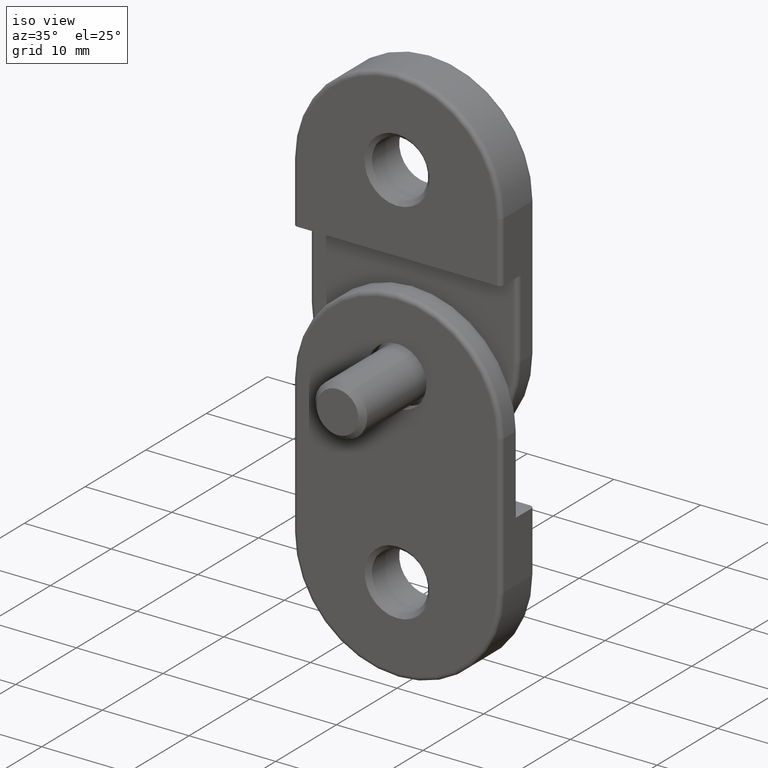
[diagram: clean part render]
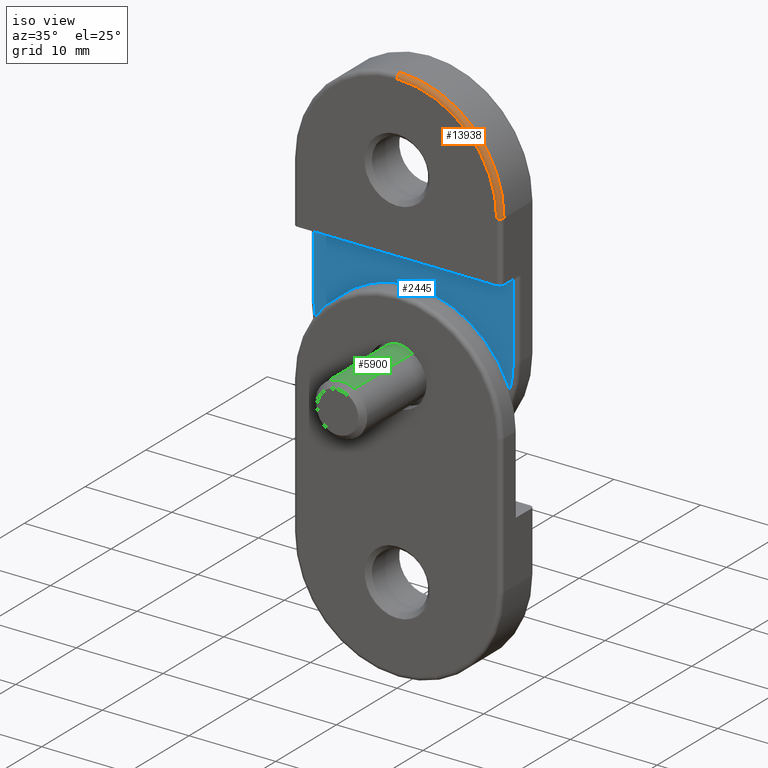
[diagram: same view with three faces highlighted in distinct colors, each labeled with its STEP entity id]
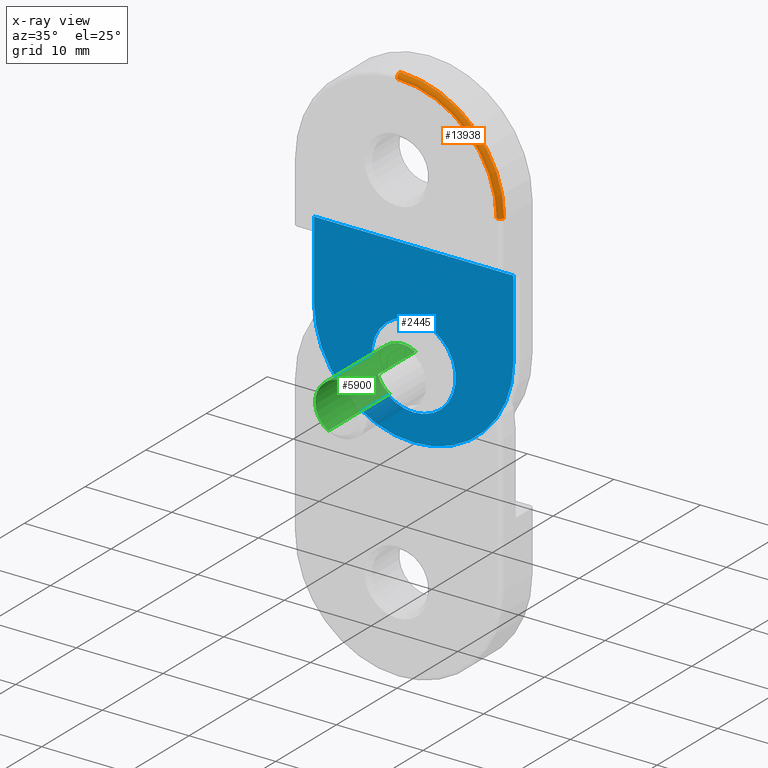
[diagram: x-ray of the same camera — body ghosted, the three highlighted faces saturated]
A machine part, iso view with three faces highlighted in distinct colors.
The next image is the same camera in x-ray (body ghosted, the three faces saturated) — at least one of them is partly hidden behind the body in this view.
Their STEP definitions:

[orange] entity #13938 — the highlighted toroidal blend (fillet) surface has major radius 11.5 mm and minor (blend) radius 0.5 mm.
#2328 = DIRECTION ( 'NONE',  ( 0.000000000000000000, 0.000000000000000000, 1.000000000000000000 ) ) ;
#2820 = CARTESIAN_POINT ( 'NONE',  ( 12.00000000000000000, 0.5000000000000004441, 6.999999999999999112 ) ) ;
#2850 = DIRECTION ( 'NONE',  ( 1.000000000000000000, 0.000000000000000000, -0.000000000000000000 ) ) ;
#3104 = ORIENTED_EDGE ( 'NONE', *, *, #13108, .F. ) ;
#3277 = DIRECTION ( 'NONE',  ( 0.000000000000000000, 0.000000000000000000, 1.000000000000000000 ) ) ;
#3326 = EDGE_LOOP ( 'NONE', ( #14875, #3104, #9956, #8364 ) ) ;
#3927 = CARTESIAN_POINT ( 'NONE',  ( 0.000000000000000000, 0.5000000000000004441, 6.999999999999999112 ) ) ;
#4734 = VERTEX_POINT ( 'NONE', #11296 ) ;
#5972 = DIRECTION ( 'NONE',  ( -0.000000000000000000, -1.000000000000000000, -0.000000000000000000 ) ) ;
#6859 = CARTESIAN_POINT ( 'NONE',  ( 11.50000000000000000, 0.5000000000000004441, 6.999999999999999112 ) ) ;
#7715 = CARTESIAN_POINT ( 'NONE',  ( 11.50000000000000000, 0.000000000000000000, 6.999999999999999112 ) ) ;
#8060 = DIRECTION ( 'NONE',  ( -1.000000000000000000, 0.000000000000000000, 0.000000000000000000 ) ) ;
#8166 = CARTESIAN_POINT ( 'NONE',  ( 0.000000000000000000, 0.5000000000000004441, 6.999999999999999112 ) ) ;
#8364 = ORIENTED_EDGE ( 'NONE', *, *, #10849, .F. ) ;
#8715 = VERTEX_POINT ( 'NONE', #13855 ) ;
#8827 = DIRECTION ( 'NONE',  ( 0.000000000000000000, 1.000000000000000000, 0.000000000000000000 ) ) ;
#8892 = AXIS2_PLACEMENT_3D ( 'NONE', #10078, #2850, #11292 ) ;
#9001 = CIRCLE ( 'NONE', #14656, 0.5000000000000004441 ) ;
#9276 = CIRCLE ( 'NONE', #9801, 12.00000000000000000 ) ;
#9571 = VERTEX_POINT ( 'NONE', #2820 ) ;
#9744 = CARTESIAN_POINT ( 'NONE',  ( 0.000000000000000000, 0.000000000000000000, 6.999999999999999112 ) ) ;
#9801 = AXIS2_PLACEMENT_3D ( 'NONE', #3927, #8827, #9898 ) ;
#9898 = DIRECTION ( 'NONE',  ( 0.000000000000000000, 0.000000000000000000, 1.000000000000000000 ) ) ;
#9956 = ORIENTED_EDGE ( 'NONE', *, *, #13602, .F. ) ;
#10011 = AXIS2_PLACEMENT_3D ( 'NONE', #8166, #10613, #3277 ) ;
#10078 = CARTESIAN_POINT ( 'NONE',  ( 0.000000000000000000, 0.5000000000000000000, 18.50000000000000355 ) ) ;
#10613 = DIRECTION ( 'NONE',  ( 0.000000000000000000, 1.000000000000000000, 0.000000000000000000 ) ) ;
#10849 = EDGE_CURVE ( 'NONE', #8715, #9571, #9276, .T. ) ;
#11094 = VERTEX_POINT ( 'NONE', #7715 ) ;
#11292 = DIRECTION ( 'NONE',  ( 0.000000000000000000, 0.000000000000000000, -1.000000000000000000 ) ) ;
#11296 = CARTESIAN_POINT ( 'NONE',  ( 0.000000000000000000, 0.000000000000000000, 18.50000000000000355 ) ) ;
#11436 = AXIS2_PLACEMENT_3D ( 'NONE', #9744, #5972, #2328 ) ;
#13108 = EDGE_CURVE ( 'NONE', #11094, #4734, #14429, .T. ) ;
#13426 = CIRCLE ( 'NONE', #8892, 0.5000000000000004441 ) ;
#13602 = EDGE_CURVE ( 'NONE', #9571, #11094, #9001, .T. ) ;
#13855 = CARTESIAN_POINT ( 'NONE',  ( 0.000000000000000000, 0.5000000000000004441, 19.00000000000000355 ) ) ;
#13938 = ADVANCED_FACE ( 'NONE', ( #14294 ), #14672, .T. ) ;
#14294 = FACE_OUTER_BOUND ( 'NONE', #3326, .T. ) ;
#14429 = CIRCLE ( 'NONE', #11436, 11.50000000000000000 ) ;
#14656 = AXIS2_PLACEMENT_3D ( 'NONE', #6859, #15315, #8060 ) ;
#14672 = TOROIDAL_SURFACE ( 'NONE', #10011, 11.50000000000000000, 0.5000000000000000000 ) ;
#14842 = EDGE_CURVE ( 'NONE', #8715, #4734, #13426, .T. ) ;
#14875 = ORIENTED_EDGE ( 'NONE', *, *, #14842, .T. ) ;
#15315 = DIRECTION ( 'NONE',  ( 0.000000000000000000, 0.000000000000000000, -1.000000000000000000 ) ) ;

[blue] entity #2445 — the highlighted planar face has unit normal (0, 1, 0).
#171 = EDGE_CURVE ( 'NONE', #15077, #4366, #9114, .T. ) ;
#172 = FACE_OUTER_BOUND ( 'NONE', #548, .T. ) ;
#548 = EDGE_LOOP ( 'NONE', ( #11580, #13718, #7294, #2819, #6272 ) ) ;
#808 = EDGE_CURVE ( 'NONE', #14907, #1157, #12312, .T. ) ;
#918 = DIRECTION ( 'NONE',  ( -0.000000000000000000, 0.000000000000000000, -1.000000000000000000 ) ) ;
#921 = CARTESIAN_POINT ( 'NONE',  ( 11.50000000000000000, 2.750000000000000000, 0.000000000000000000 ) ) ;
#954 = AXIS2_PLACEMENT_3D ( 'NONE', #13791, #8741, #8574 ) ;
#1032 = DIRECTION ( 'NONE',  ( 0.000000000000000000, 0.000000000000000000, 1.000000000000000000 ) ) ;
#1157 = VERTEX_POINT ( 'NONE', #6341 ) ;
#1272 = FACE_BOUND ( 'NONE', #11463, .T. ) ;
#1821 = DIRECTION ( 'NONE',  ( -1.000000000000000000, 0.000000000000000000, 0.000000000000000000 ) ) ;
#1946 = LINE ( 'NONE', #14189, #12901 ) ;
#2363 = ORIENTED_EDGE ( 'NONE', *, *, #9874, .F. ) ;
#2445 = ADVANCED_FACE ( 'NONE', ( #1272, #172 ), #13098, .F. ) ;
#2819 = ORIENTED_EDGE ( 'NONE', *, *, #6876, .T. ) ;
#4031 = ORIENTED_EDGE ( 'NONE', *, *, #808, .F. ) ;
#4366 = VERTEX_POINT ( 'NONE', #10380 ) ;
#4557 = VERTEX_POINT ( 'NONE', #921 ) ;
#4699 = DIRECTION ( 'NONE',  ( 0.000000000000000000, -0.000000000000000000, 1.000000000000000000 ) ) ;
#4700 = CARTESIAN_POINT ( 'NONE',  ( -11.50000000000000000, 2.750000000000000000, -9.000000000000001776 ) ) ;
#4729 = CIRCLE ( 'NONE', #11158, 4.850000000000024514 ) ;
#5946 = AXIS2_PLACEMENT_3D ( 'NONE', #7944, #15574, #8310 ) ;
#6272 = ORIENTED_EDGE ( 'NONE', *, *, #7071, .T. ) ;
#6274 = VECTOR ( 'NONE', #10844, 1000.000000000000000 ) ;
#6341 = CARTESIAN_POINT ( 'NONE',  ( 0.000000000000000000, 2.749999999999998224, -7.649999999999969269 ) ) ;
#6876 = EDGE_CURVE ( 'NONE', #4366, #13826, #10056, .T. ) ;
#7053 = CARTESIAN_POINT ( 'NONE',  ( 0.000000000000000000, 2.749999999999998224, -12.49999999999999289 ) ) ;
#7055 = CARTESIAN_POINT ( 'NONE',  ( 12.00000000000000000, 2.750000000000000000, -21.00000000000000000 ) ) ;
#7071 = EDGE_CURVE ( 'NONE', #13826, #4557, #10037, .T. ) ;
#7134 = AXIS2_PLACEMENT_3D ( 'NONE', #12592, #15044, #9005 ) ;
#7254 = CARTESIAN_POINT ( 'NONE',  ( -11.50000000000000000, 2.750000000000000000, 0.000000000000000000 ) ) ;
#7294 = ORIENTED_EDGE ( 'NONE', *, *, #171, .T. ) ;
#7944 = CARTESIAN_POINT ( 'NONE',  ( 0.000000000000000000, 2.750000000000000000, -9.000000000000001776 ) ) ;
#8207 = DIRECTION ( 'NONE',  ( -0.000000000000000000, -1.000000000000000000, -0.000000000000000000 ) ) ;
#8310 = DIRECTION ( 'NONE',  ( 0.000000000000000000, 0.000000000000000000, 1.000000000000000000 ) ) ;
#8574 = DIRECTION ( 'NONE',  ( 0.000000000000000000, 0.000000000000000000, 1.000000000000000000 ) ) ;
#8741 = DIRECTION ( 'NONE',  ( -0.000000000000000000, -1.000000000000000000, -0.000000000000000000 ) ) ;
#8867 = VECTOR ( 'NONE', #1821, 1000.000000000000000 ) ;
#9005 = DIRECTION ( 'NONE',  ( 0.000000000000000000, 0.000000000000000000, 1.000000000000000000 ) ) ;
#9114 = CIRCLE ( 'NONE', #5946, 11.50000000000000000 ) ;
#9610 = CARTESIAN_POINT ( 'NONE',  ( 11.50000000000000000, 2.750000000000000000, -9.000000000000001776 ) ) ;
#9874 = EDGE_CURVE ( 'NONE', #1157, #14907, #4729, .T. ) ;
#9958 = EDGE_CURVE ( 'NONE', #4557, #13757, #15286, .T. ) ;
#10037 = LINE ( 'NONE', #12197, #6274 ) ;
#10056 = CIRCLE ( 'NONE', #954, 11.50000000000000000 ) ;
#10130 = CARTESIAN_POINT ( 'NONE',  ( 12.00000000000000000, 2.750000000000000000, 0.000000000000000000 ) ) ;
#10171 = CARTESIAN_POINT ( 'NONE',  ( 6.704941225331771450E-16, 2.749999999999998224, -17.35000000000001918 ) ) ;
#10380 = CARTESIAN_POINT ( 'NONE',  ( 0.000000000000000000, 2.750000000000000000, -20.50000000000000000 ) ) ;
#10711 = DIRECTION ( 'NONE',  ( 0.000000000000000000, 1.000000000000000000, 0.000000000000000000 ) ) ;
#10844 = DIRECTION ( 'NONE',  ( 0.000000000000000000, -0.000000000000000000, 1.000000000000000000 ) ) ;
#11158 = AXIS2_PLACEMENT_3D ( 'NONE', #7053, #8207, #1032 ) ;
#11463 = EDGE_LOOP ( 'NONE', ( #2363, #4031 ) ) ;
#11580 = ORIENTED_EDGE ( 'NONE', *, *, #9958, .T. ) ;
#12197 = CARTESIAN_POINT ( 'NONE',  ( 11.50000000000000000, 2.750000000000000000, -6.938893903907228378E-15 ) ) ;
#12312 = CIRCLE ( 'NONE', #7134, 4.850000000000024514 ) ;
#12592 = CARTESIAN_POINT ( 'NONE',  ( 0.000000000000000000, 2.749999999999998224, -12.49999999999999289 ) ) ;
#12901 = VECTOR ( 'NONE', #918, 1000.000000000000000 ) ;
#13050 = EDGE_CURVE ( 'NONE', #13757, #15077, #1946, .T. ) ;
#13098 = PLANE ( 'NONE',  #13142 ) ;
#13142 = AXIS2_PLACEMENT_3D ( 'NONE', #7055, #10711, #4699 ) ;
#13718 = ORIENTED_EDGE ( 'NONE', *, *, #13050, .T. ) ;
#13757 = VERTEX_POINT ( 'NONE', #7254 ) ;
#13791 = CARTESIAN_POINT ( 'NONE',  ( 0.000000000000000000, 2.750000000000000000, -9.000000000000001776 ) ) ;
#13826 = VERTEX_POINT ( 'NONE', #9610 ) ;
#14189 = CARTESIAN_POINT ( 'NONE',  ( -11.50000000000000000, 2.750000000000000000, -21.00000000000000000 ) ) ;
#14907 = VERTEX_POINT ( 'NONE', #10171 ) ;
#15044 = DIRECTION ( 'NONE',  ( -0.000000000000000000, -1.000000000000000000, -0.000000000000000000 ) ) ;
#15077 = VERTEX_POINT ( 'NONE', #4700 ) ;
#15286 = LINE ( 'NONE', #10130, #8867 ) ;
#15574 = DIRECTION ( 'NONE',  ( -0.000000000000000000, -1.000000000000000000, -0.000000000000000000 ) ) ;

[green] entity #5900 — the highlighted cylindrical surface (edge-blend (fillet) strip) has radius 3 mm, axis along (-0, 1, 0).
#450 = CIRCLE ( 'NONE', #2752, 2.999999999999992895 ) ;
#660 = ORIENTED_EDGE ( 'NONE', *, *, #13157, .T. ) ;
#1217 = CARTESIAN_POINT ( 'NONE',  ( 3.673940397442053459E-16, -2.999999999999993339, 3.299999999999997158 ) ) ;
#1683 = ORIENTED_EDGE ( 'NONE', *, *, #13027, .F. ) ;
#2036 = FACE_OUTER_BOUND ( 'NONE', #4137, .T. ) ;
#2078 = CARTESIAN_POINT ( 'NONE',  ( 3.673940397442055431E-16, -2.999999999999996447, -3.673940397442055431E-16 ) ) ;
#2752 = AXIS2_PLACEMENT_3D ( 'NONE', #8155, #8314, #5806 ) ;
#3233 = VERTEX_POINT ( 'NONE', #1217 ) ;
#3264 = CIRCLE ( 'NONE', #4130, 2.999999999999996447 ) ;
#3479 = ORIENTED_EDGE ( 'NONE', *, *, #13513, .F. ) ;
#4130 = AXIS2_PLACEMENT_3D ( 'NONE', #9638, #6130, #4962 ) ;
#4137 = EDGE_LOOP ( 'NONE', ( #3479, #660, #5411, #1683 ) ) ;
#4472 = VECTOR ( 'NONE', #4997, 1000.000000000000000 ) ;
#4920 = CARTESIAN_POINT ( 'NONE',  ( 0.000000000000000000, 0.000000000000000000, 0.000000000000000000 ) ) ;
#4962 = DIRECTION ( 'NONE',  ( 0.000000000000000000, -1.000000000000000000, 0.000000000000000000 ) ) ;
#4997 = DIRECTION ( 'NONE',  ( -0.000000000000000000, 1.224646799147353207E-16, -1.000000000000000000 ) ) ;
#5061 = DIRECTION ( 'NONE',  ( 0.000000000000000000, 1.000000000000000000, 1.224646799147353207E-16 ) ) ;
#5411 = ORIENTED_EDGE ( 'NONE', *, *, #9480, .T. ) ;
#5712 = AXIS2_PLACEMENT_3D ( 'NONE', #4920, #10986, #5061 ) ;
#5806 = DIRECTION ( 'NONE',  ( 0.000000000000000000, 1.000000000000000000, 1.445602896647342614E-16 ) ) ;
#5900 = ADVANCED_FACE ( 'NONE', ( #2036 ), #6232, .T. ) ;
#6130 = DIRECTION ( 'NONE',  ( -0.000000000000000000, 1.224646799147353454E-16, -1.000000000000000000 ) ) ;
#6232 = CYLINDRICAL_SURFACE ( 'NONE', #5712, 2.999999999999996447 ) ;
#7367 = CARTESIAN_POINT ( 'NONE',  ( 3.673940397442056417E-16, -2.999999999999998224, 13.40000000000000036 ) ) ;
#7403 = VERTEX_POINT ( 'NONE', #8051 ) ;
#8051 = CARTESIAN_POINT ( 'NONE',  ( 0.000000000000000000, 2.999999999999994671, 13.40000000000000036 ) ) ;
#8155 = CARTESIAN_POINT ( 'NONE',  ( 0.000000000000000000, -4.041334437186262551E-16, 3.299999999999997602 ) ) ;
#8279 = CARTESIAN_POINT ( 'NONE',  ( 0.000000000000000000, 2.999999999999996447, 3.673940397442055431E-16 ) ) ;
#8314 = DIRECTION ( 'NONE',  ( -0.000000000000000000, 1.224646799147353207E-16, -1.000000000000000000 ) ) ;
#9328 = DIRECTION ( 'NONE',  ( -0.000000000000000000, 1.224646799147353207E-16, -1.000000000000000000 ) ) ;
#9480 = EDGE_CURVE ( 'NONE', #7403, #15237, #15120, .T. ) ;
#9638 = CARTESIAN_POINT ( 'NONE',  ( 0.000000000000000000, -1.641026710857453312E-15, 13.40000000000000036 ) ) ;
#9825 = VECTOR ( 'NONE', #9328, 1000.000000000000000 ) ;
#10159 = LINE ( 'NONE', #2078, #4472 ) ;
#10986 = DIRECTION ( 'NONE',  ( -0.000000000000000000, 1.224646799147353207E-16, -1.000000000000000000 ) ) ;
#11089 = CARTESIAN_POINT ( 'NONE',  ( 0.000000000000000000, 2.999999999999992450, 3.299999999999998046 ) ) ;
#12280 = VERTEX_POINT ( 'NONE', #7367 ) ;
#13027 = EDGE_CURVE ( 'NONE', #3233, #15237, #450, .T. ) ;
#13157 = EDGE_CURVE ( 'NONE', #12280, #7403, #3264, .T. ) ;
#13513 = EDGE_CURVE ( 'NONE', #12280, #3233, #10159, .T. ) ;
#15120 = LINE ( 'NONE', #8279, #9825 ) ;
#15237 = VERTEX_POINT ( 'NONE', #11089 ) ;